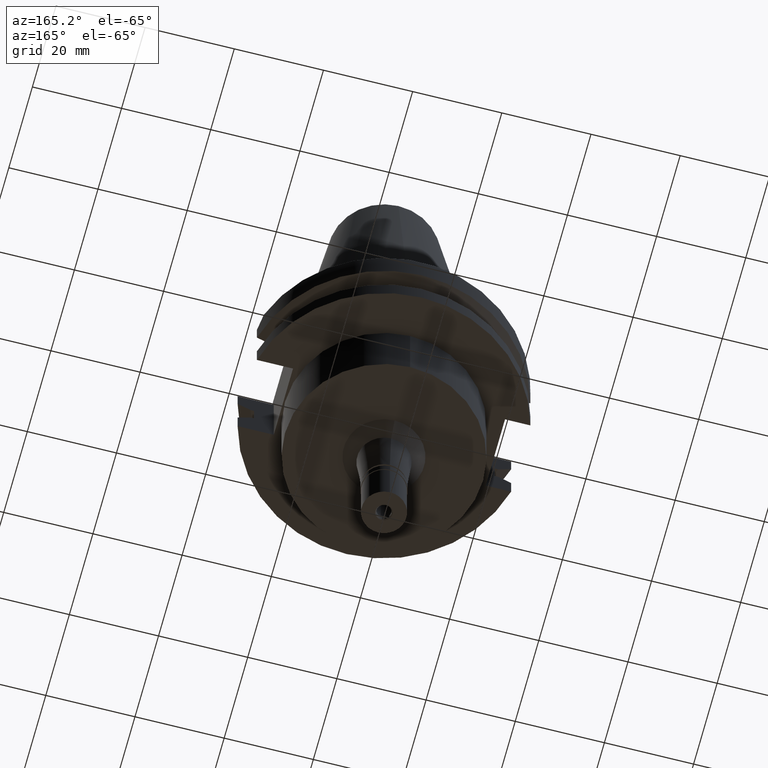
[diagram: clean part render]
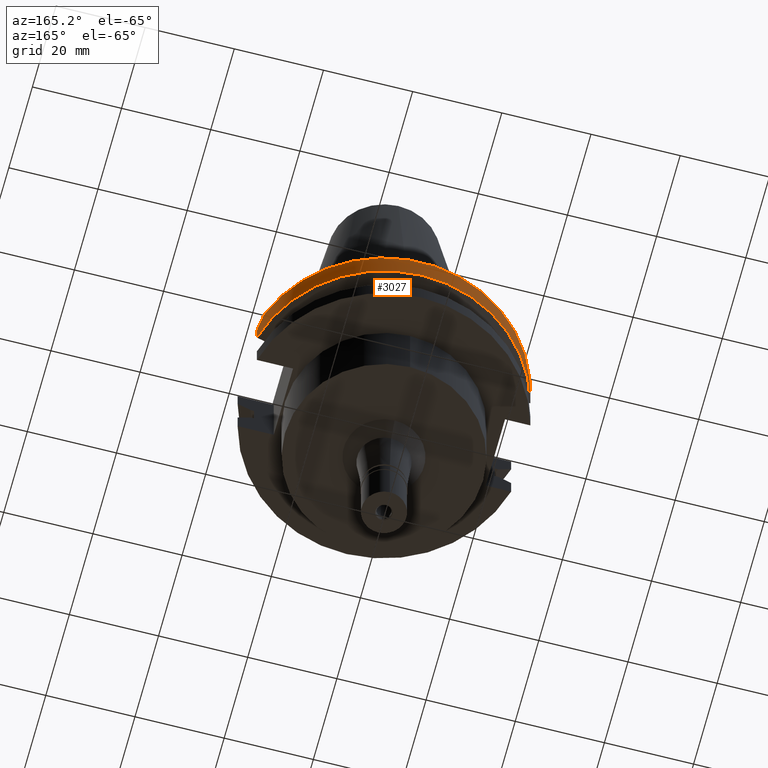
[diagram: same view with one face highlighted and labeled with its STEP entity id]
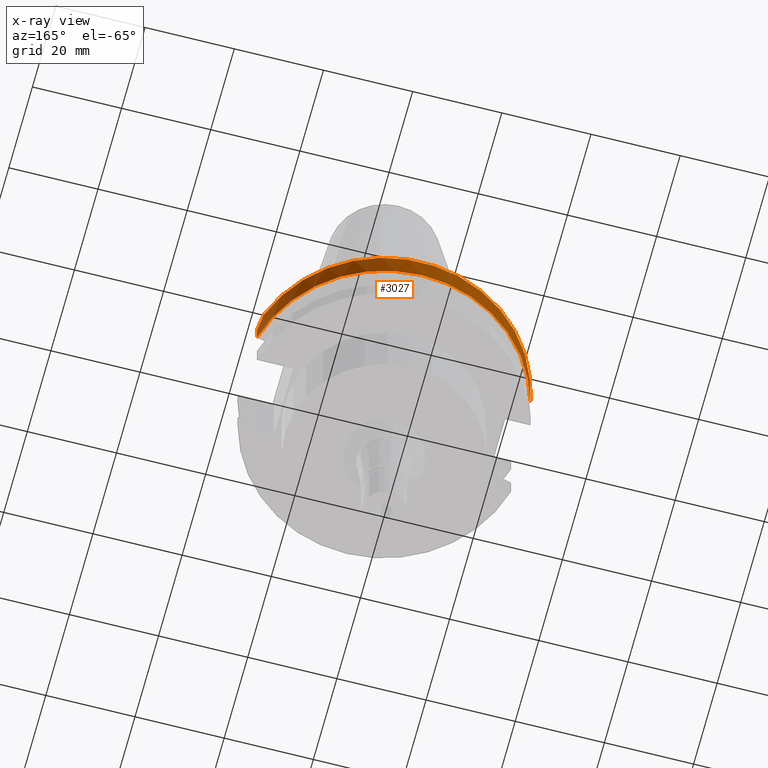
[diagram: x-ray of the same camera — body ghosted, the highlighted face saturated]
A machine part, auxiliary view. The second image highlights one B-rep face of the part: STEP entity #3027.
The next image is the same camera in x-ray: the body ghosted, the highlighted face saturated — about 0% of this face is hidden behind the body in this view.
In plain terms, the highlighted cylindrical surface (partial cylindrical patch) has radius 31.75 mm, axis along (0, 0, -1).
Its self-contained STEP definition (entity closure, byte-faithful):
#11 = B_SPLINE_CURVE_WITH_KNOTS ( 'NONE', 3,
 ( #2293, #2517, #292, #1034 ),
 .UNSPECIFIED., .F., .F.,
 ( 4, 4 ),
 ( 0.0000000000000000000, 1.000000000000000000 ),
 .UNSPECIFIED. ) ;
#14 = CIRCLE ( 'NONE', #1810, 31.75000000000000000 ) ;
#58 = CARTESIAN_POINT ( 'NONE',  ( -30.67550162588999640, 8.189999999999999503, -3.700000000000000178 ) ) ;
#118 = CARTESIAN_POINT ( 'NONE',  ( 0.0000000000000000000, 1.121722380078999823E-14, -7.601333230925999551 ) ) ;
#125 = VERTEX_POINT ( 'NONE', #1692 ) ;
#215 = ORIENTED_EDGE ( 'NONE', *, *, #1687, .F. ) ;
#221 = VECTOR ( 'NONE', #500, 1000.000000000000114 ) ;
#251 = FACE_OUTER_BOUND ( 'NONE', #2410, .T. ) ;
#292 = CARTESIAN_POINT ( 'NONE',  ( 30.14799306409551960, 10.00266721625513888, -1.887332783744861242 ) ) ;
#335 = DIRECTION ( 'NONE',  ( 0.0000000000000000000, 0.0000000000000000000, 1.000000000000000000 ) ) ;
#371 = DIRECTION ( 'NONE',  ( 0.9661575315241073270, 0.2579527559055020958, 0.0000000000000000000 ) ) ;
#436 = CARTESIAN_POINT ( 'NONE',  ( 0.0000000000000000000, 2.138876250880999822E-14, 74.65250000000000341 ) ) ;
#442 = VERTEX_POINT ( 'NONE', #3139 ) ;
#500 = DIRECTION ( 'NONE',  ( -8.724635007361996614E-09, 3.267752481281997989E-08, 0.9999999999999994449 ) ) ;
#534 = DIRECTION ( 'NONE',  ( 4.161287295422944908E-08, 1.558607177134979658E-07, -0.9999999999999868994 ) ) ;
#548 = CARTESIAN_POINT ( 'NONE',  ( 29.82399034335000110, 10.89000000000000057, -1.000000000001000089 ) ) ;
#654 = ORIENTED_EDGE ( 'NONE', *, *, #703, .T. ) ;
#703 = EDGE_CURVE ( 'NONE', #2371, #901, #14, .T. ) ;
#796 = CARTESIAN_POINT ( 'NONE',  ( 30.67550165992999567, 8.189999872514000856, -7.601334370190000023 ) ) ;
#797 = ORIENTED_EDGE ( 'NONE', *, *, #1173, .T. ) ;
#805 = LINE ( 'NONE', #58, #1611 ) ;
#877 = EDGE_CURVE ( 'NONE', #442, #1187, #805, .T. ) ;
#887 = AXIS2_PLACEMENT_3D ( 'NONE', #436, #2421, #2190 ) ;
#901 = VERTEX_POINT ( 'NONE', #548 ) ;
#999 = CARTESIAN_POINT ( 'NONE',  ( 0.0000000000000000000, 2.138876250880999822E-14, -1.000000000000000000 ) ) ;
#1026 = CARTESIAN_POINT ( 'NONE',  ( -29.82399034335000110, 10.89000000000000057, -1.000000000000000000 ) ) ;
#1034 = CARTESIAN_POINT ( 'NONE',  ( 29.82399034335000110, 10.89000000000000057, -1.000000000001000089 ) ) ;
#1112 = ORIENTED_EDGE ( 'NONE', *, *, #2167, .F. ) ;
#1152 = CIRCLE ( 'NONE', #2195, 31.74999999999998579 ) ;
#1173 = EDGE_CURVE ( 'NONE', #125, #1187, #1152, .T. ) ;
#1187 = VERTEX_POINT ( 'NONE', #1316 ) ;
#1276 = CARTESIAN_POINT ( 'NONE',  ( -30.14799306409551249, 10.00266721625513888, -1.887332783744861242 ) ) ;
#1316 = CARTESIAN_POINT ( 'NONE',  ( -30.67550146353999807, 8.190000608064000431, -7.601327796914000068 ) ) ;
#1497 = DIRECTION ( 'NONE',  ( 0.0000000000000000000, 0.0000000000000000000, -1.000000000000000000 ) ) ;
#1523 = CARTESIAN_POINT ( 'NONE',  ( -30.43183015827551330, 9.102667216255303728, -2.787332783744695064 ) ) ;
#1611 = VECTOR ( 'NONE', #534, 1000.000000000000114 ) ;
#1676 = EDGE_CURVE ( 'NONE', #2371, #442, #2313, .T. ) ;
#1687 = EDGE_CURVE ( 'NONE', #3142, #901, #11, .T. ) ;
#1692 = CARTESIAN_POINT ( 'NONE',  ( 30.67550165992999567, 8.189999872514000856, -7.601334370190000023 ) ) ;
#1738 = CYLINDRICAL_SURFACE ( 'NONE', #887, 31.75000000000000000 ) ;
#1810 = AXIS2_PLACEMENT_3D ( 'NONE', #999, #1497, #2211 ) ;
#2167 = EDGE_CURVE ( 'NONE', #125, #3142, #2261, .T. ) ;
#2190 = DIRECTION ( 'NONE',  ( 0.0000000000000000000, -1.000000000000000000, 0.0000000000000000000 ) ) ;
#2195 = AXIS2_PLACEMENT_3D ( 'NONE', #118, #335, #371 ) ;
#2211 = DIRECTION ( 'NONE',  ( 0.0000000000000000000, 1.000000000000000000, 0.0000000000000000000 ) ) ;
#2261 = LINE ( 'NONE', #796, #221 ) ;
#2285 = ORIENTED_EDGE ( 'NONE', *, *, #1676, .F. ) ;
#2293 = CARTESIAN_POINT ( 'NONE',  ( 30.67550162588999640, 8.189999999999999503, -3.700000000000000178 ) ) ;
#2313 = B_SPLINE_CURVE_WITH_KNOTS ( 'NONE', 3,
 ( #1026, #1276, #1523, #3014 ),
 .UNSPECIFIED., .F., .F.,
 ( 4, 4 ),
 ( 0.0000000000000000000, 1.000000000000000000 ),
 .UNSPECIFIED. ) ;
#2371 = VERTEX_POINT ( 'NONE', #2387 ) ;
#2387 = CARTESIAN_POINT ( 'NONE',  ( -29.82399034335000110, 10.89000000000000057, -1.000000000000000000 ) ) ;
#2410 = EDGE_LOOP ( 'NONE', ( #797, #2514, #2285, #654, #215, #1112 ) ) ;
#2421 = DIRECTION ( 'NONE',  ( 0.0000000000000000000, 0.0000000000000000000, -1.000000000000000000 ) ) ;
#2514 = ORIENTED_EDGE ( 'NONE', *, *, #877, .F. ) ;
#2517 = CARTESIAN_POINT ( 'NONE',  ( 30.43183015827552040, 9.102667216255303728, -2.787332783744695064 ) ) ;
#2766 = CARTESIAN_POINT ( 'NONE',  ( 30.67550162588999640, 8.189999999999999503, -3.700000000000000178 ) ) ;
#3014 = CARTESIAN_POINT ( 'NONE',  ( -30.67550162588999640, 8.189999999999999503, -3.700000000000000178 ) ) ;
#3027 = ADVANCED_FACE ( 'NONE', ( #251 ), #1738, .T. ) ;
#3139 = CARTESIAN_POINT ( 'NONE',  ( -30.67550162588999640, 8.189999999999999503, -3.700000000000000178 ) ) ;
#3142 = VERTEX_POINT ( 'NONE', #2766 ) ;